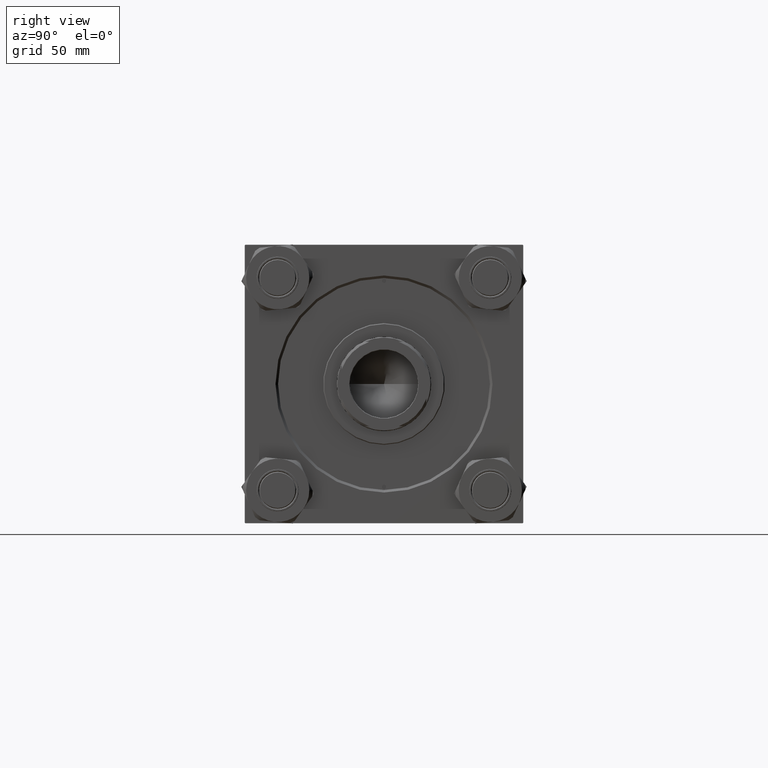
[diagram: clean part render]
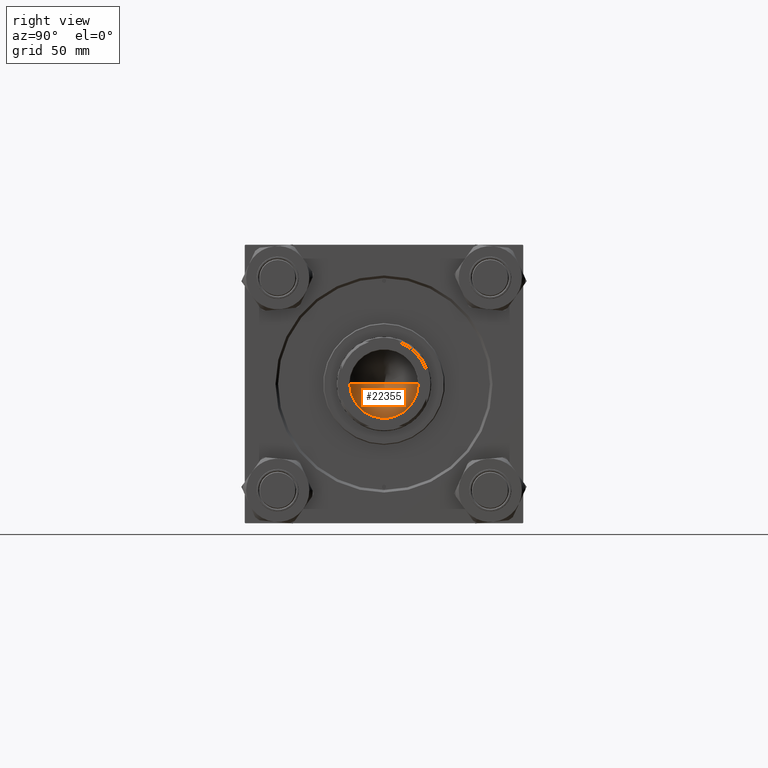
[diagram: same view with one face highlighted and labeled with its STEP entity id]
A machine part, right view. The second image highlights one B-rep face of the part: STEP entity #22355.
In plain terms, the highlighted conical surface has half-angle 59 deg.
Its self-contained STEP definition (entity closure, byte-faithful):
#1089 = VERTEX_POINT ( 'NONE', #2973 ) ;
#1291 = ORIENTED_EDGE ( 'NONE', *, *, #46237, .T. ) ;
#2179 = EDGE_CURVE ( 'NONE', #37797, #1089, #17034, .T. ) ;
#2612 = AXIS2_PLACEMENT_3D ( 'NONE', #18310, #25457, #45099 ) ;
#2973 = CARTESIAN_POINT ( 'NONE',  ( -20.24999999999998934, 2.479909768273389117E-15, 166.0000000000000000 ) ) ;
#3467 = CONICAL_SURFACE ( 'NONE', #2612, 20.24999999999998934, 1.029744258676653423 ) ;
#6606 = CARTESIAN_POINT ( 'NONE',  ( -1.584115414415908206E-14, 0.000000000000000000, 153.8325724646919070 ) ) ;
#8606 = DIRECTION ( 'NONE',  ( -0.000000000000000000, -0.000000000000000000, 1.000000000000000000 ) ) ;
#17034 = LINE ( 'NONE', #39779, #36181 ) ;
#18039 = VECTOR ( 'NONE', #34441, 1000.000000000000000 ) ;
#18054 = FACE_OUTER_BOUND ( 'NONE', #40082, .T. ) ;
#18310 = CARTESIAN_POINT ( 'NONE',  ( 0.000000000000000000, 0.000000000000000000, 166.0000000000000000 ) ) ;
#20551 = EDGE_CURVE ( 'NONE', #37797, #46691, #46938, .T. ) ;
#21267 = CARTESIAN_POINT ( 'NONE',  ( 20.24999999999998934, 0.000000000000000000, 166.0000000000000000 ) ) ;
#22220 = ORIENTED_EDGE ( 'NONE', *, *, #20551, .T. ) ;
#22355 = ADVANCED_FACE ( 'NONE', ( #18054 ), #3467, .F. ) ;
#24444 = DIRECTION ( 'NONE',  ( -0.8571673007021117785, 1.049727191138617956E-16, 0.5150380749100550437 ) ) ;
#25343 = ORIENTED_EDGE ( 'NONE', *, *, #2179, .F. ) ;
#25457 = DIRECTION ( 'NONE',  ( -0.000000000000000000, -0.000000000000000000, 1.000000000000000000 ) ) ;
#28008 = CARTESIAN_POINT ( 'NONE',  ( 0.000000000000000000, 0.000000000000000000, 166.0000000000000000 ) ) ;
#31532 = CIRCLE ( 'NONE', #45375, 20.24999999999998934 ) ;
#34441 = DIRECTION ( 'NONE',  ( 0.8571673007021117785, 0.000000000000000000, 0.5150380749100550437 ) ) ;
#36165 = DIRECTION ( 'NONE',  ( 1.000000000000000000, 0.000000000000000000, 0.000000000000000000 ) ) ;
#36181 = VECTOR ( 'NONE', #24444, 1000.000000000000000 ) ;
#37797 = VERTEX_POINT ( 'NONE', #6606 ) ;
#39779 = CARTESIAN_POINT ( 'NONE',  ( -20.24999999999998934, 2.479909768273389117E-15, 166.0000000000000000 ) ) ;
#40082 = EDGE_LOOP ( 'NONE', ( #25343, #22220, #1291 ) ) ;
#45099 = DIRECTION ( 'NONE',  ( 1.000000000000000000, 0.000000000000000000, 0.000000000000000000 ) ) ;
#45375 = AXIS2_PLACEMENT_3D ( 'NONE', #28008, #8606, #36165 ) ;
#46237 = EDGE_CURVE ( 'NONE', #46691, #1089, #31532, .T. ) ;
#46691 = VERTEX_POINT ( 'NONE', #21267 ) ;
#46938 = LINE ( 'NONE', #50253, #18039 ) ;
#50253 = CARTESIAN_POINT ( 'NONE',  ( 20.24999999999998934, 0.000000000000000000, 166.0000000000000000 ) ) ;